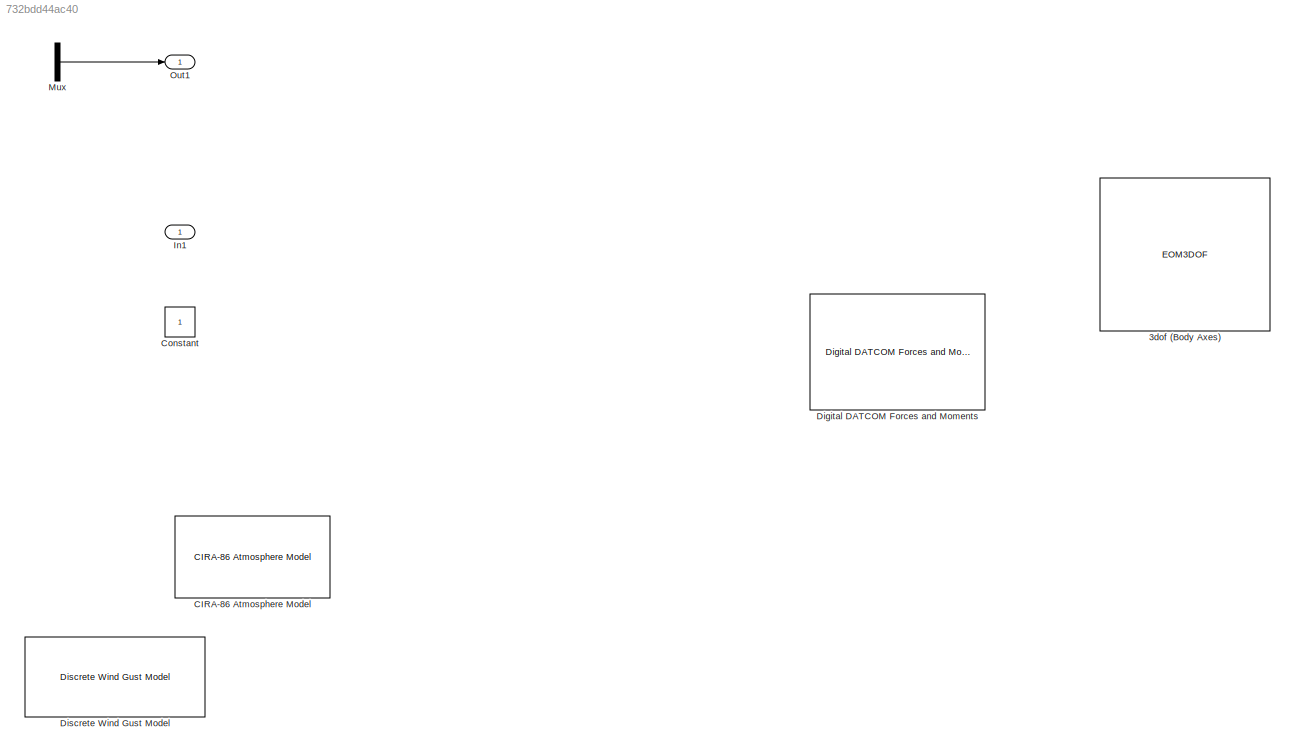
MODEL slx_732bdd44ac40
KIND model
CONFIG AbsTol = auto
CONFIG EnableMultiTasking = off
CONFIG FixedStep = auto
CONFIG MaxStep = auto
CONFIG MinStep = auto
CONFIG RelTol = 1e-3
CONFIG SampleTimeConstraint = Unconstrained
CONFIG SolverName = VariableStepAuto
CONFIG StartTime = 0.0
CONFIG StopTime = 10.0
BLOCK [EOM3DOF] 3dof (Body Axes)
BLOCK [Reference] CIRA-86 Atmosphere Model  REF=aerolibatmos2/CIRA-86 Atmosphere Model
  SourceBlock = aerolibatmos2/CIRA-86 Atmosphere Model
  SourceType = CIRA-86 Model
BLOCK [Constant] Constant
BLOCK [Reference] Digital DATCOM Forces and Moments  REF=aerolibadyn/Digital DATCOM
Forces and Moments
  SourceBlock = aerolibadyn/Digital DATCOM\nForces and Moments
  SourceType = Digital DATCOM Forces and Moments
BLOCK [Reference] Discrete Wind Gust Model  REF=aerolibwind2/Discrete Wind Gust Model
  SourceBlock = aerolibwind2/Discrete Wind Gust Model
  SourceType = Discrete Wind Gust Model
BLOCK [Inport] In1
BLOCK [Mux] Mux
  DisplayOption = bar
  Inputs = 2
BLOCK [Outport] Out1
LINE Mux:1 -> Out1:1
